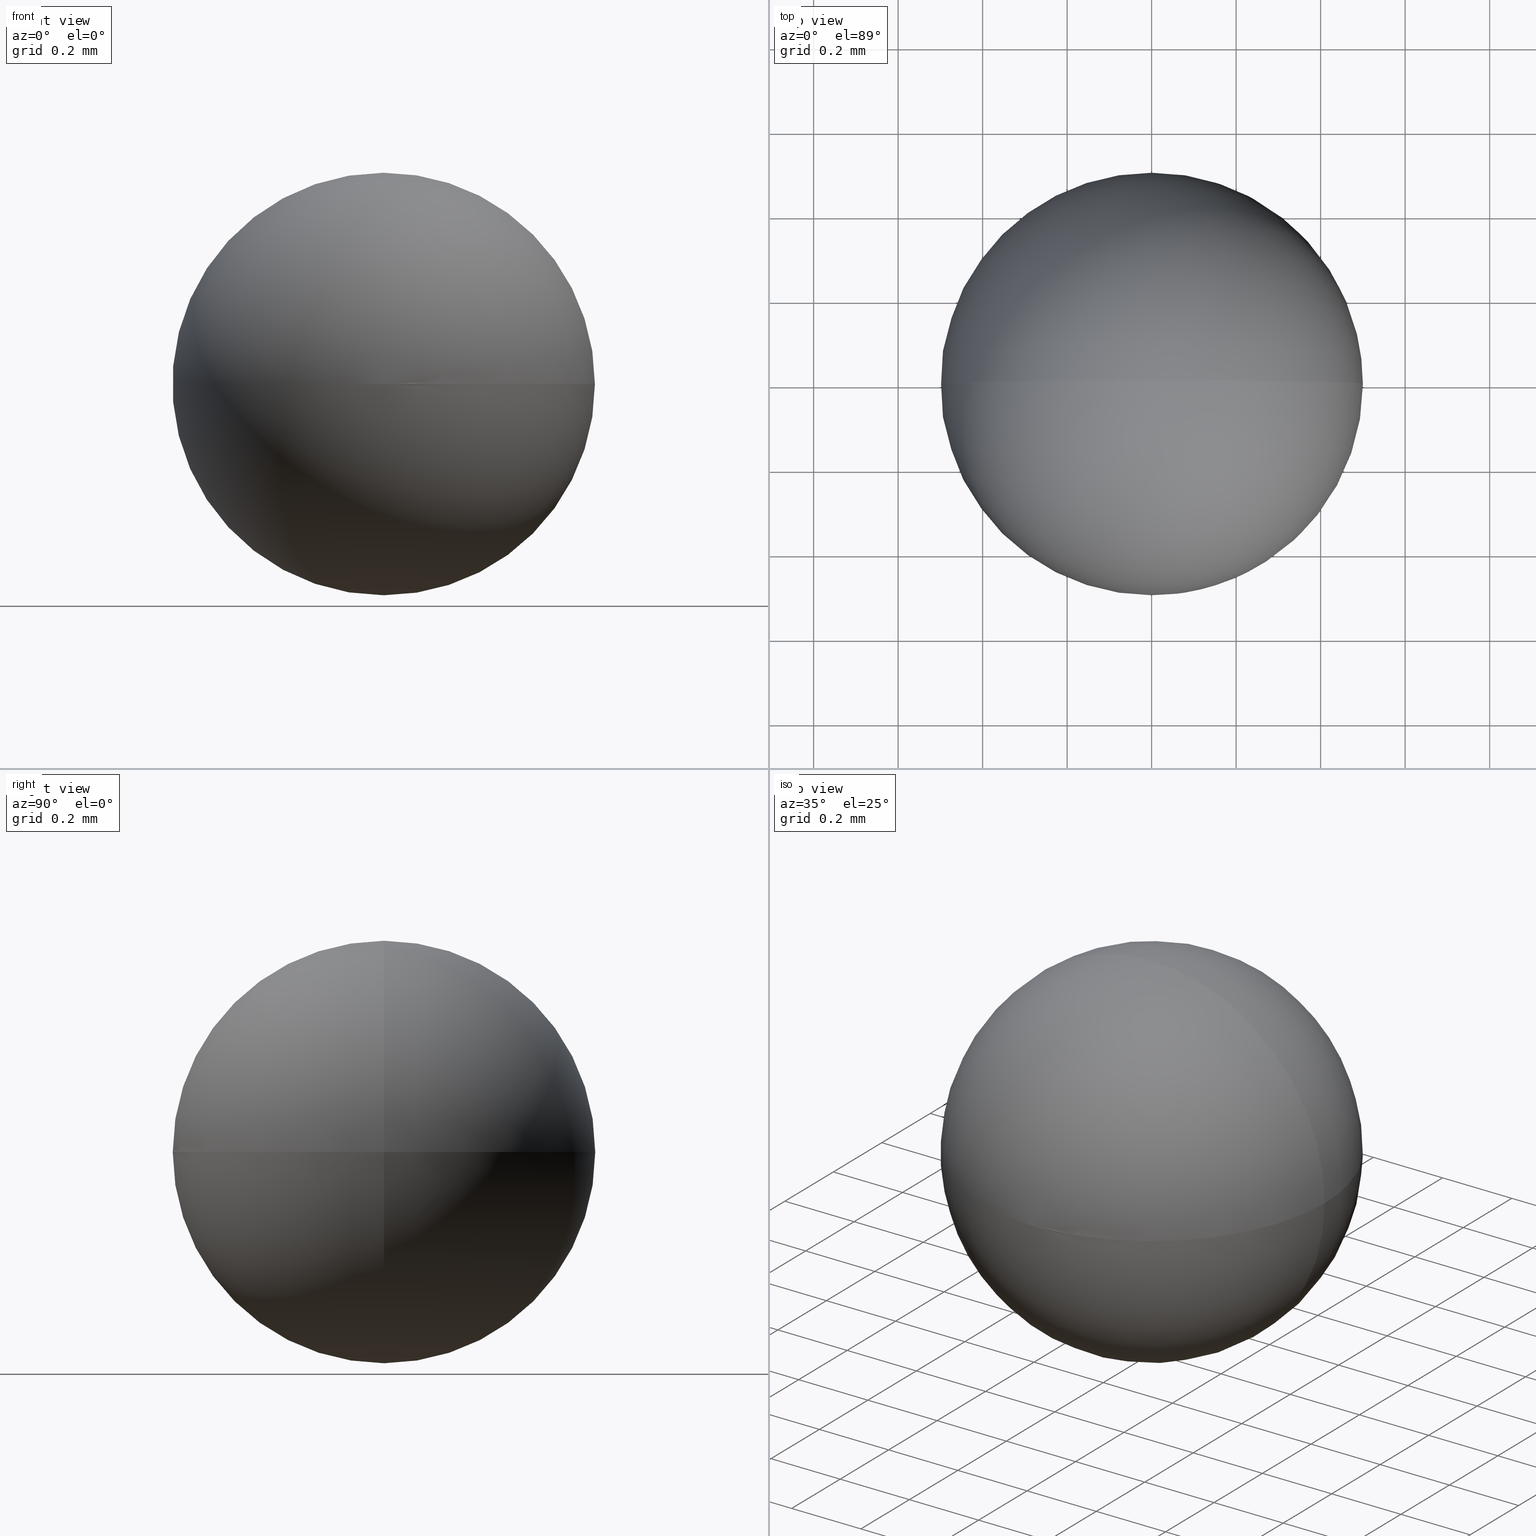
[diagram: canonical four-view strip — front | top / right | iso, engineering-drawing reading convention]
A machine part, canonical four-view strip (front | top / right | iso — engineering-drawing reading convention). The complete STEP part file that produces these views, byte-faithful:
ISO-10303-21;
HEADER;
FILE_DESCRIPTION (( 'STEP AP203' ),
    '1' );
FILE_NAME ('����͸��.STEP',
    '2019-06-05T05:25:34',
    ( '' ),
    ( '' ),
    'SwSTEP 2.0',
    'SolidWorks 2016',
    '' );
FILE_SCHEMA (( 'CONFIG_CONTROL_DESIGN' ));
ENDSEC;

DATA;
#1 = APPROVAL_ROLE ( '' ) ;
#2 = PERSON_AND_ORGANIZATION ( #191, #132 ) ;
#3 = ORIENTED_EDGE ( 'NONE', *, *, #154, .F. ) ;
#4 = CC_DESIGN_PERSON_AND_ORGANIZATION_ASSIGNMENT ( #189, #103, ( #108 ) ) ;
#5 = APPROVAL_PERSON_ORGANIZATION ( #53, #129, #90 ) ;
#6 = CC_DESIGN_PERSON_AND_ORGANIZATION_ASSIGNMENT ( #198, #43, ( #124 ) ) ;
#7 = LOCAL_TIME ( 13, 25, 34.00000000000000000, #11 ) ;
#8 = PRODUCT_DEFINITION ( 'δ֪', '', #108, #186 ) ;
#9 = CARTESIAN_POINT ( 'NONE',  ( 3.061616997868383000E-017, 0.0000000000000000000, 0.5000000000000000000 ) ) ;
#10 = CARTESIAN_POINT ( 'NONE',  ( 0.0000000000000000000, 0.0000000000000000000, 0.0000000000000000000 ) ) ;
#11 = COORDINATED_UNIVERSAL_TIME_OFFSET ( 8, 0, .AHEAD. ) ;
#12 = APPROVAL_ROLE ( '' ) ;
#13 = PERSON_AND_ORGANIZATION_ROLE ( 'creator' ) ;
#14 = APPLICATION_CONTEXT ( 'configuration controlled 3d designs of mechanical parts and assemblies' ) ;
#15 = APPROVAL_PERSON_ORGANIZATION ( #153, #193, #78 ) ;
#16 = CC_DESIGN_PERSON_AND_ORGANIZATION_ASSIGNMENT ( #150, #167, ( #8 ) ) ;
#17 = COORDINATED_UNIVERSAL_TIME_OFFSET ( 8, 0, .AHEAD. ) ;
#18 = COORDINATED_UNIVERSAL_TIME_OFFSET ( 8, 0, .AHEAD. ) ;
#19 = EDGE_CURVE ( 'NONE', #133, #95, #126, .T. ) ;
#20 = PERSON_AND_ORGANIZATION ( #191, #132 ) ;
#21 = CC_DESIGN_APPROVAL ( #50, ( #176 ) ) ;
#22 =( NAMED_UNIT ( * ) PLANE_ANGLE_UNIT ( ) SI_UNIT ( $, .RADIAN. ) );
#23 = AXIS2_PLACEMENT_3D ( 'NONE', #128, #177, #99 ) ;
#24 = PERSON_AND_ORGANIZATION ( #191, #132 ) ;
#25 = SHAPE_DEFINITION_REPRESENTATION ( #80, #84 ) ;
#26 = CC_DESIGN_PERSON_AND_ORGANIZATION_ASSIGNMENT ( #24, #122, ( #176 ) ) ;
#27 = CARTESIAN_POINT ( 'NONE',  ( 0.0000000000000000000, 0.0000000000000000000, 0.0000000000000000000 ) ) ;
#28 = ORIENTED_EDGE ( 'NONE', *, *, #19, .F. ) ;
#29 = CC_DESIGN_DATE_AND_TIME_ASSIGNMENT ( #144, #102, ( #8 ) ) ;
#30 = APPROVAL_ROLE ( '' ) ;
#31 = APPROVAL_DATE_TIME ( #125, #119 ) ;
#32 = APPROVAL_STATUS ( 'not_yet_approved' ) ;
#33 = ADVANCED_FACE ( 'NONE', ( #157 ), #66, .T. ) ;
#34 = APPROVAL_STATUS ( 'not_yet_approved' ) ;
#35 = CALENDAR_DATE ( 2019, 5, 6 ) ;
#36 = CC_DESIGN_PERSON_AND_ORGANIZATION_ASSIGNMENT ( #20, #121, ( #71 ) ) ;
#37 = PERSON_AND_ORGANIZATION ( #191, #132 ) ;
#38 = CC_DESIGN_DATE_AND_TIME_ASSIGNMENT ( #179, #92, ( #176 ) ) ;
#39 = CALENDAR_DATE ( 2019, 5, 6 ) ;
#40 = CALENDAR_DATE ( 2019, 5, 6 ) ;
#41 = CC_DESIGN_PERSON_AND_ORGANIZATION_ASSIGNMENT ( #61, #166, ( #108 ) ) ;
#42 = CIRCLE ( 'NONE', #79, 0.5000000000000000000 ) ;
#43 = PERSON_AND_ORGANIZATION_ROLE ( 'design_owner' ) ;
#44 = DIRECTION ( 'NONE',  ( 1.000000000000000000, 0.0000000000000000000, 0.0000000000000000000 ) ) ;
#45 = CC_DESIGN_SECURITY_CLASSIFICATION ( #176, ( #162 ) ) ;
#46 = MECHANICAL_CONTEXT ( 'NONE', #131, 'mechanical' ) ;
#47 = LOCAL_TIME ( 13, 25, 34.00000000000000000, #76 ) ;
#48 = APPROVAL_STATUS ( 'not_yet_approved' ) ;
#49 = CLOSED_SHELL ( 'NONE', ( #187, #33 ) ) ;
#50 = APPROVAL ( #48, 'δָ��' ) ;
#51 = APPROVAL_PERSON_ORGANIZATION ( #87, #50, #30 ) ;
#52 = AXIS2_PLACEMENT_3D ( 'NONE', #163, #178, #44 ) ;
#53 = PERSON_AND_ORGANIZATION ( #191, #132 ) ;
#54 = CALENDAR_DATE ( 2019, 5, 6 ) ;
#55 = PERSON_AND_ORGANIZATION ( #191, #132 ) ;
#56 = EDGE_LOOP ( 'NONE', ( #3, #171 ) ) ;
#57 = CARTESIAN_POINT ( 'NONE',  ( 0.0000000000000000000, 0.0000000000000000000, 0.0000000000000000000 ) ) ;
#58 = LOCAL_TIME ( 13, 25, 34.00000000000000000, #161 ) ;
#59 = SECURITY_CLASSIFICATION ( '', '', #203 ) ;
#60 = PERSON_AND_ORGANIZATION_ROLE ( 'classification_officer' ) ;
#61 = PERSON_AND_ORGANIZATION ( #191, #132 ) ;
#62 = PRODUCT_DEFINITION ( 'δ֪', '', #162, #112 ) ;
#63 = APPROVAL_DATE_TIME ( #85, #193 ) ;
#64 = CC_DESIGN_APPROVAL ( #119, ( #8 ) ) ;
#65 = DATE_AND_TIME ( #35, #192 ) ;
#66 = SPHERICAL_SURFACE ( 'NONE', #23, 0.5000000000000000000 ) ;
#67 = APPROVAL ( #91, 'δָ��' ) ;
#68 = APPROVAL_DATE_TIME ( #139, #129 ) ;
#69 = FACE_OUTER_BOUND ( 'NONE', #56, .T. ) ;
#70 = DIRECTION ( 'NONE',  ( 0.0000000000000000000, 0.0000000000000000000, 1.000000000000000000 ) ) ;
#71 = PRODUCT ( '����͸��', '����͸��', '', ( #107 ) ) ;
#72 = CC_DESIGN_PERSON_AND_ORGANIZATION_ASSIGNMENT ( #94, #135, ( #162 ) ) ;
#73 = DIRECTION ( 'NONE',  ( 0.0000000000000000000, 0.0000000000000000000, 1.000000000000000000 ) ) ;
#74 = COORDINATED_UNIVERSAL_TIME_OFFSET ( 8, 0, .AHEAD. ) ;
#75 = DIRECTION ( 'NONE',  ( 1.000000000000000000, 0.0000000000000000000, 0.0000000000000000000 ) ) ;
#76 = COORDINATED_UNIVERSAL_TIME_OFFSET ( 8, 0, .AHEAD. ) ;
#77 = UNCERTAINTY_MEASURE_WITH_UNIT (LENGTH_MEASURE( 1.000000000000000100E-005 ), #86, 'distance_accuracy_value', 'NONE');
#78 = APPROVAL_ROLE ( '' ) ;
#79 = AXIS2_PLACEMENT_3D ( 'NONE', #27, #199, #73 ) ;
#80 = PRODUCT_DEFINITION_SHAPE ( 'NONE', 'NONE',  #62 ) ;
#81 = APPROVAL_PERSON_ORGANIZATION ( #89, #119, #12 ) ;
#82 = CC_DESIGN_APPROVAL ( #67, ( #59 ) ) ;
#83 = APPROVAL_DATE_TIME ( #190, #50 ) ;
#84 = ADVANCED_BREP_SHAPE_REPRESENTATION ( '����͸��', ( #151, #52 ), #200 ) ;
#85 = DATE_AND_TIME ( #109, #123 ) ;
#86 =( LENGTH_UNIT ( ) NAMED_UNIT ( * ) SI_UNIT ( .MILLI., .METRE. ) );
#87 = PERSON_AND_ORGANIZATION ( #191, #132 ) ;
#88 = CARTESIAN_POINT ( 'NONE',  ( 0.0000000000000000000, 0.0000000000000000000, 0.0000000000000000000 ) ) ;
#89 = PERSON_AND_ORGANIZATION ( #191, #132 ) ;
#90 = APPROVAL_ROLE ( '' ) ;
#91 = APPROVAL_STATUS ( 'not_yet_approved' ) ;
#92 = DATE_TIME_ROLE ( 'classification_date' ) ;
#93 = CC_DESIGN_DATE_AND_TIME_ASSIGNMENT ( #183, #105, ( #62 ) ) ;
#94 = PERSON_AND_ORGANIZATION ( #191, #132 ) ;
#95 = VERTEX_POINT ( 'NONE', #196 ) ;
#96 = PRODUCT_RELATED_PRODUCT_CATEGORY ( 'detail', '', ( #124 ) ) ;
#97 = LOCAL_TIME ( 13, 25, 34.00000000000000000, #116 ) ;
#98 = APPLICATION_PROTOCOL_DEFINITION ( 'international standard', 'config_control_design', 1994, #145 ) ;
#99 = DIRECTION ( 'NONE',  ( 1.000000000000000000, 0.0000000000000000000, 0.0000000000000000000 ) ) ;
#100 = DIRECTION ( 'NONE',  ( 1.224646799147353200E-016, -1.000000000000000000, 0.0000000000000000000 ) ) ;
#101 = LOCAL_TIME ( 13, 25, 34.00000000000000000, #17 ) ;
#102 = DATE_TIME_ROLE ( 'creation_date' ) ;
#103 = PERSON_AND_ORGANIZATION_ROLE ( 'creator' ) ;
#104 = APPROVAL_DATE_TIME ( #110, #67 ) ;
#105 = DATE_TIME_ROLE ( 'creation_date' ) ;
#106 = ORIENTED_EDGE ( 'NONE', *, *, #154, .T. ) ;
#107 = MECHANICAL_CONTEXT ( 'NONE', #114, 'mechanical' ) ;
#108 = PRODUCT_DEFINITION_FORMATION_WITH_SPECIFIED_SOURCE ( '�κ�', '', #124, .NOT_KNOWN. ) ;
#109 = CALENDAR_DATE ( 2019, 5, 6 ) ;
#110 = DATE_AND_TIME ( #39, #111 ) ;
#111 = LOCAL_TIME ( 13, 25, 34.00000000000000000, #140 ) ;
#112 = DESIGN_CONTEXT ( 'detailed design', #14, 'design' ) ;
#113 = EDGE_LOOP ( 'NONE', ( #28, #106 ) ) ;
#114 = APPLICATION_CONTEXT ( 'configuration controlled 3d designs of mechanical parts and assemblies' ) ;
#115 = APPROVAL_STATUS ( 'not_yet_approved' ) ;
#116 = COORDINATED_UNIVERSAL_TIME_OFFSET ( 8, 0, .AHEAD. ) ;
#117 =( NAMED_UNIT ( * ) SI_UNIT ( $, .STERADIAN. ) SOLID_ANGLE_UNIT ( ) );
#118 = APPROVAL_PERSON_ORGANIZATION ( #184, #127, #1 ) ;
#119 = APPROVAL ( #115, 'δָ��' ) ;
#120 = SECURITY_CLASSIFICATION_LEVEL ( 'unclassified' ) ;
#121 = PERSON_AND_ORGANIZATION_ROLE ( 'design_owner' ) ;
#122 = PERSON_AND_ORGANIZATION_ROLE ( 'classification_officer' ) ;
#123 = LOCAL_TIME ( 13, 25, 34.00000000000000000, #202 ) ;
#124 = PRODUCT ( '����͸��', '����͸��', '', ( #46 ) ) ;
#125 = DATE_AND_TIME ( #54, #101 ) ;
#126 = CIRCLE ( 'NONE', #164, 0.5000000000000000000 ) ;
#127 = APPROVAL ( #32, 'δָ��' ) ;
#128 = CARTESIAN_POINT ( 'NONE',  ( 0.0000000000000000000, 0.0000000000000000000, 0.0000000000000000000 ) ) ;
#129 = APPROVAL ( #137, 'δָ��' ) ;
#130 = DIRECTION ( 'NONE',  ( 0.0000000000000000000, -1.000000000000000000, -0.0000000000000000000 ) ) ;
#131 = APPLICATION_CONTEXT ( 'configuration controlled 3d designs of mechanical parts and assemblies' ) ;
#132 = ORGANIZATION ( 'δָ��', 'δָ��', '' ) ;
#133 = VERTEX_POINT ( 'NONE', #9 ) ;
#134 = PRODUCT_DEFINITION_SHAPE ( 'NONE', 'NONE',  #8 ) ;
#135 = PERSON_AND_ORGANIZATION_ROLE ( 'design_supplier' ) ;
#136 = PERSON_AND_ORGANIZATION ( #191, #132 ) ;
#137 = APPROVAL_STATUS ( 'not_yet_approved' ) ;
#138 = CC_DESIGN_APPROVAL ( #193, ( #108 ) ) ;
#139 = DATE_AND_TIME ( #173, #143 ) ;
#140 = COORDINATED_UNIVERSAL_TIME_OFFSET ( 8, 0, .AHEAD. ) ;
#141 = CC_DESIGN_APPROVAL ( #127, ( #62 ) ) ;
#142 = PRODUCT_RELATED_PRODUCT_CATEGORY ( 'detail', '', ( #71 ) ) ;
#143 = LOCAL_TIME ( 13, 25, 34.00000000000000000, #18 ) ;
#144 = DATE_AND_TIME ( #40, #7 ) ;
#145 = APPLICATION_CONTEXT ( 'configuration controlled 3d designs of mechanical parts and assemblies' ) ;
#146 = CC_DESIGN_PERSON_AND_ORGANIZATION_ASSIGNMENT ( #37, #169, ( #162 ) ) ;
#147 = APPROVAL_DATE_TIME ( #65, #127 ) ;
#148 = CC_DESIGN_PERSON_AND_ORGANIZATION_ASSIGNMENT ( #2, #60, ( #59 ) ) ;
#149 = SPHERICAL_SURFACE ( 'NONE', #172, 0.5000000000000000000 ) ;
#150 = PERSON_AND_ORGANIZATION ( #191, #132 ) ;
#151 = MANIFOLD_SOLID_BREP ( '��ת2', #49 ) ;
#152 = APPROVAL_ROLE ( '' ) ;
#153 = PERSON_AND_ORGANIZATION ( #191, #132 ) ;
#154 = EDGE_CURVE ( 'NONE', #133, #95, #42, .T. ) ;
#155 = CC_DESIGN_APPROVAL ( #129, ( #162 ) ) ;
#156 = CALENDAR_DATE ( 2019, 5, 6 ) ;
#157 = FACE_OUTER_BOUND ( 'NONE', #113, .T. ) ;
#158 = APPLICATION_PROTOCOL_DEFINITION ( 'international standard', 'config_control_design', 1994, #131 ) ;
#159 = CALENDAR_DATE ( 2019, 5, 6 ) ;
#160 = CC_DESIGN_SECURITY_CLASSIFICATION ( #59, ( #108 ) ) ;
#161 = COORDINATED_UNIVERSAL_TIME_OFFSET ( 8, 0, .AHEAD. ) ;
#162 = PRODUCT_DEFINITION_FORMATION_WITH_SPECIFIED_SOURCE ( '�κ�', '', #71, .NOT_KNOWN. ) ;
#163 = CARTESIAN_POINT ( 'NONE',  ( 0.0000000000000000000, 0.0000000000000000000, 0.0000000000000000000 ) ) ;
#164 = AXIS2_PLACEMENT_3D ( 'NONE', #88, #100, #175 ) ;
#165 = APPLICATION_PROTOCOL_DEFINITION ( 'international standard', 'config_control_design', 1994, #114 ) ;
#166 = PERSON_AND_ORGANIZATION_ROLE ( 'design_supplier' ) ;
#167 = PERSON_AND_ORGANIZATION_ROLE ( 'creator' ) ;
#168 = CALENDAR_DATE ( 2019, 5, 6 ) ;
#169 = PERSON_AND_ORGANIZATION_ROLE ( 'creator' ) ;
#170 = APPROVAL_PERSON_ORGANIZATION ( #136, #67, #152 ) ;
#171 = ORIENTED_EDGE ( 'NONE', *, *, #19, .T. ) ;
#172 = AXIS2_PLACEMENT_3D ( 'NONE', #57, #130, #75 ) ;
#173 = CALENDAR_DATE ( 2019, 5, 6 ) ;
#174 = CALENDAR_DATE ( 2019, 5, 6 ) ;
#175 = DIRECTION ( 'NONE',  ( 1.000000000000000000, 1.224646799147353200E-016, 0.0000000000000000000 ) ) ;
#176 = SECURITY_CLASSIFICATION ( '', '', #120 ) ;
#177 = DIRECTION ( 'NONE',  ( 0.0000000000000000000, -1.000000000000000000, -0.0000000000000000000 ) ) ;
#178 = DIRECTION ( 'NONE',  ( 0.0000000000000000000, 0.0000000000000000000, 1.000000000000000000 ) ) ;
#179 = DATE_AND_TIME ( #168, #97 ) ;
#180 = CC_DESIGN_DATE_AND_TIME_ASSIGNMENT ( #181, #185, ( #59 ) ) ;
#181 = DATE_AND_TIME ( #174, #47 ) ;
#182 = DIRECTION ( 'NONE',  ( 1.000000000000000000, 0.0000000000000000000, 0.0000000000000000000 ) ) ;
#183 = DATE_AND_TIME ( #156, #58 ) ;
#184 = PERSON_AND_ORGANIZATION ( #191, #132 ) ;
#185 = DATE_TIME_ROLE ( 'classification_date' ) ;
#186 = DESIGN_CONTEXT ( 'detailed design', #145, 'design' ) ;
#187 = ADVANCED_FACE ( 'NONE', ( #69 ), #149, .T. ) ;
#188 = COORDINATED_UNIVERSAL_TIME_OFFSET ( 8, 0, .AHEAD. ) ;
#189 = PERSON_AND_ORGANIZATION ( #191, #132 ) ;
#190 = DATE_AND_TIME ( #159, #197 ) ;
#191 = PERSON ( 'δָ��', 'δָ��', 'δָ��', ('δָ��'), ('δָ��'), ('δָ��') ) ;
#192 = LOCAL_TIME ( 13, 25, 34.00000000000000000, #74 ) ;
#193 = APPROVAL ( #34, 'δָ��' ) ;
#194 = CC_DESIGN_PERSON_AND_ORGANIZATION_ASSIGNMENT ( #55, #13, ( #62 ) ) ;
#195 = AXIS2_PLACEMENT_3D ( 'NONE', #10, #70, #182 ) ;
#196 = CARTESIAN_POINT ( 'NONE',  ( 3.061616997868383000E-017, 0.0000000000000000000, -0.5000000000000000000 ) ) ;
#197 = LOCAL_TIME ( 13, 25, 34.00000000000000000, #188 ) ;
#198 = PERSON_AND_ORGANIZATION ( #191, #132 ) ;
#199 = DIRECTION ( 'NONE',  ( 0.0000000000000000000, 1.000000000000000000, -0.0000000000000000000 ) ) ;
#200 =( GEOMETRIC_REPRESENTATION_CONTEXT ( 3 ) GLOBAL_UNCERTAINTY_ASSIGNED_CONTEXT ( ( #77 ) ) GLOBAL_UNIT_ASSIGNED_CONTEXT ( ( #86, #22, #117 ) ) REPRESENTATION_CONTEXT ( 'NONE', 'WORKASPACE' ) );
#201 = APPLICATION_PROTOCOL_DEFINITION ( 'international standard', 'config_control_design', 1994, #14 ) ;
#202 = COORDINATED_UNIVERSAL_TIME_OFFSET ( 8, 0, .AHEAD. ) ;
#203 = SECURITY_CLASSIFICATION_LEVEL ( 'unclassified' ) ;
ENDSEC;
END-ISO-10303-21;
